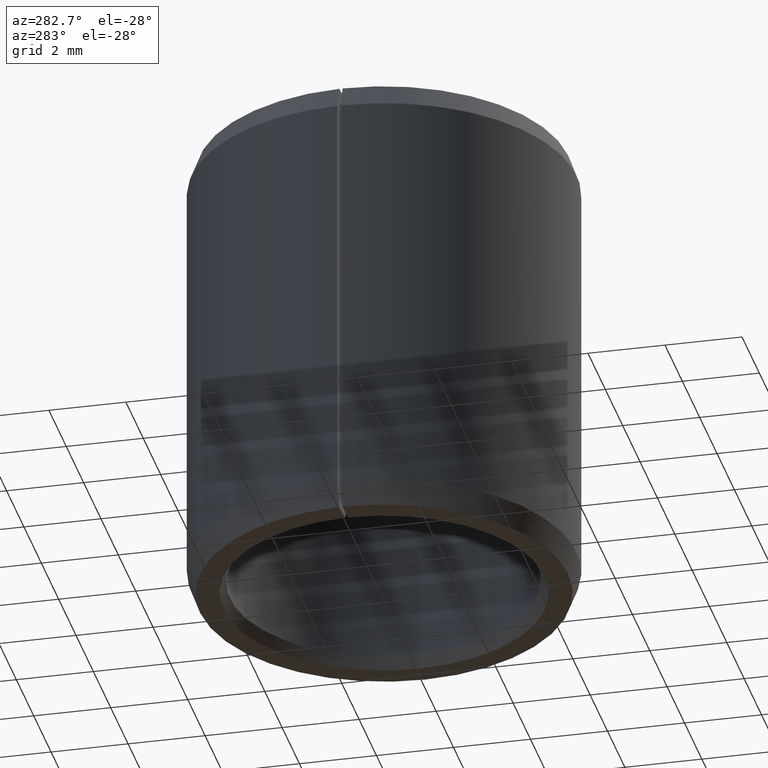
[diagram: clean part render]
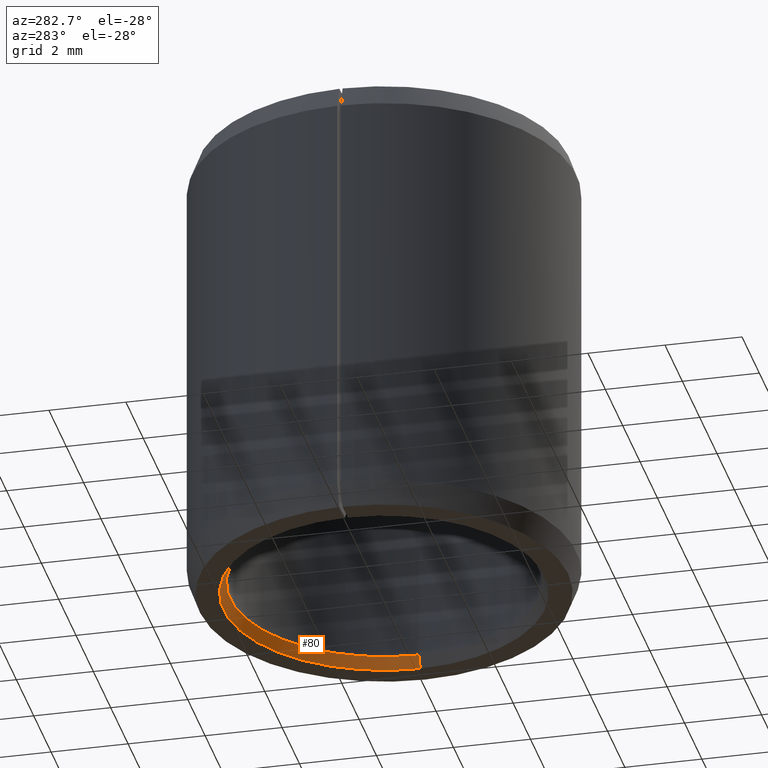
[diagram: same view with one face highlighted and labeled with its STEP entity id]
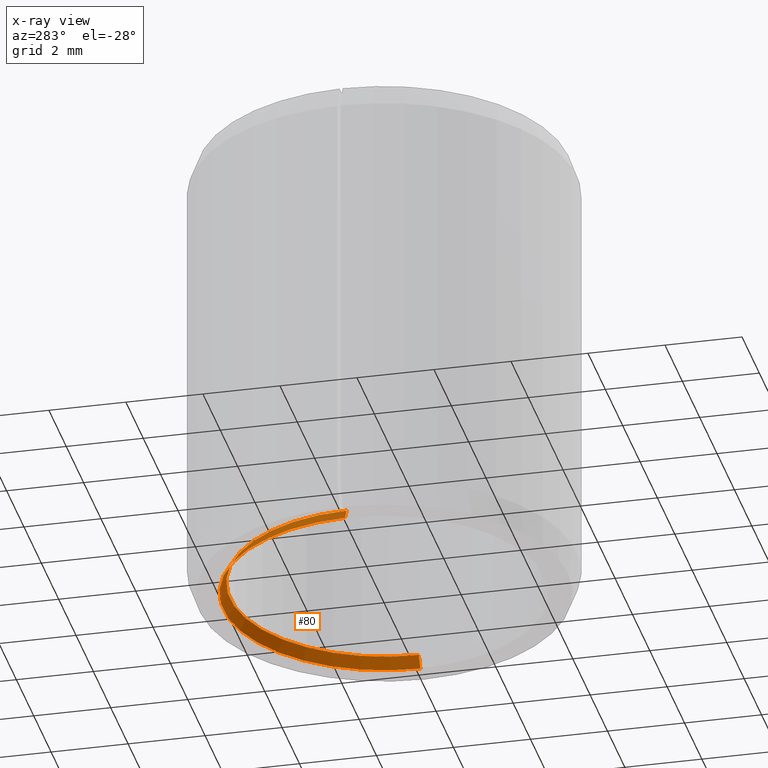
[diagram: x-ray of the same camera — body ghosted, the highlighted face saturated]
A machine part, auxiliary view. The second image highlights one B-rep face of the part: STEP entity #80.
The next image is the same camera in x-ray: the body ghosted, the highlighted face saturated — about 0% of this face is hidden behind the body in this view.
In plain terms, the highlighted conical surface has half-angle 30 deg.
Its self-contained STEP definition (entity closure, byte-faithful):
#80=ADVANCED_FACE('',(#102),#103,.F.);
#102=FACE_OUTER_BOUND('',#134,.T.);
#103=CONICAL_SURFACE('',#135,4.08660254037844,0.523598775598301);
#134=EDGE_LOOP('',(#191,#192,#193,#194));
#135=AXIS2_PLACEMENT_3D('',#195,#196,#197);
#191=ORIENTED_EDGE('',*,*,#297,.F.);
#192=ORIENTED_EDGE('',*,*,#283,.T.);
#193=ORIENTED_EDGE('',*,*,#298,.T.);
#194=ORIENTED_EDGE('',*,*,#299,.F.);
#195=CARTESIAN_POINT('',(4.35610017907595E-016,-8.41247610334811E-016,0.150000000000003));
#196=DIRECTION('',(-5.48707263966375E-016,6.09939603923743E-016,-1.0));
#197=DIRECTION('',(-1.0,1.89882151931499E-015,5.48707263966376E-016));
#283=EDGE_CURVE('',#319,#323,#325,.T.);
#297=EDGE_CURVE('',#319,#349,#350,.T.);
#298=EDGE_CURVE('',#323,#351,#352,.T.);
#299=EDGE_CURVE('',#349,#351,#353,.T.);
#319=VERTEX_POINT('',#381);
#323=VERTEX_POINT('',#386);
#325=CIRCLE('',#389,4.0);
#349=VERTEX_POINT('',#421);
#350=LINE('',#422,#423);
#351=VERTEX_POINT('',#424);
#352=LINE('',#425,#426);
#353=CIRCLE('',#427,4.17320508075689);
#381=CARTESIAN_POINT('',(4.0,-9.01788334784225E-015,0.299999999999999));
#386=CARTESIAN_POINT('',(-3.99939078062556,0.0698096257491401,0.300000000000004));
#389=AXIS2_PLACEMENT_3D('',#469,#470,#471);
#421=CARTESIAN_POINT('',(4.17320508075689,-9.1849985060355E-015,-9.02089161051245E-016));
#422=CARTESIAN_POINT('',(4.08660254037844,-9.10144092693887E-015,0.15));
#423=VECTOR('',#495,1.0);
#424=CARTESIAN_POINT('',(-4.17256948140972,0.0728324712155121,3.73209575579315E-015));
#425=CARTESIAN_POINT('',(-3.99939078062556,0.0698096257491401,0.300000000000004));
#426=VECTOR('',#496,9.99999999999999);
#427=AXIS2_PLACEMENT_3D('',#497,#498,#499);
#469=CARTESIAN_POINT('',(5.1791610750255E-016,-9.23553699929767E-016,0.300000000000002));
#470=DIRECTION('',(5.48707263966375E-016,-6.09939603923743E-016,1.0));
#471=DIRECTION('',(-1.0,1.89882151931499E-015,5.48707263966376E-016));
#495=DIRECTION('',(0.500000000000002,-4.82419907842685E-016,-0.866025403784438));
#496=DIRECTION('',(-0.499923847578198,0.00872620321864311,-0.866025403784437));
#497=CARTESIAN_POINT('',(3.53303928312638E-016,-7.58941520739854E-016,1.40055521273414E-015));
#498=DIRECTION('',(5.48707263966375E-016,-6.09939603923743E-016,1.0));
#499=DIRECTION('',(-1.0,1.89882151931499E-015,5.48707263966376E-016));